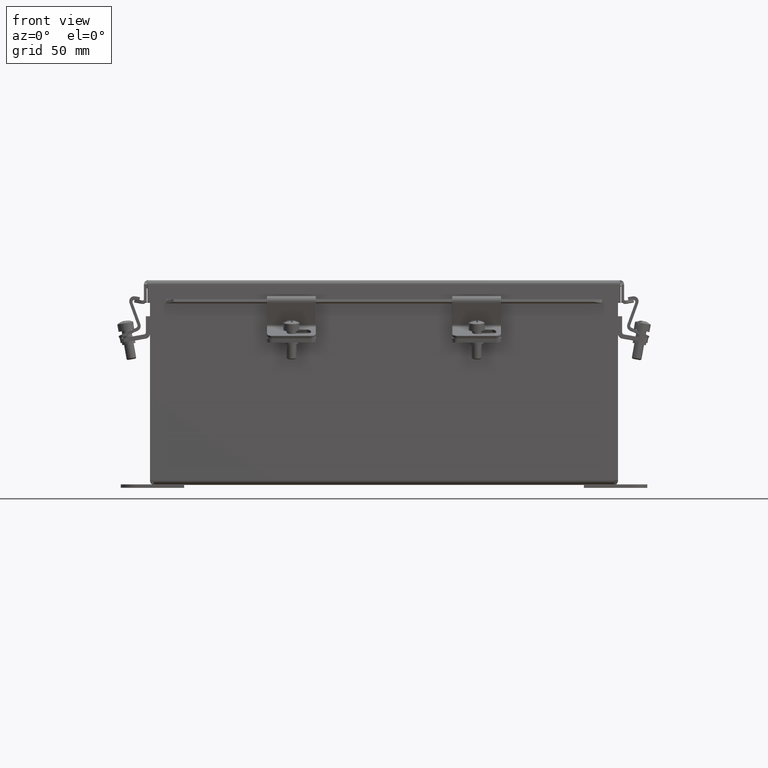
[diagram: clean part render]
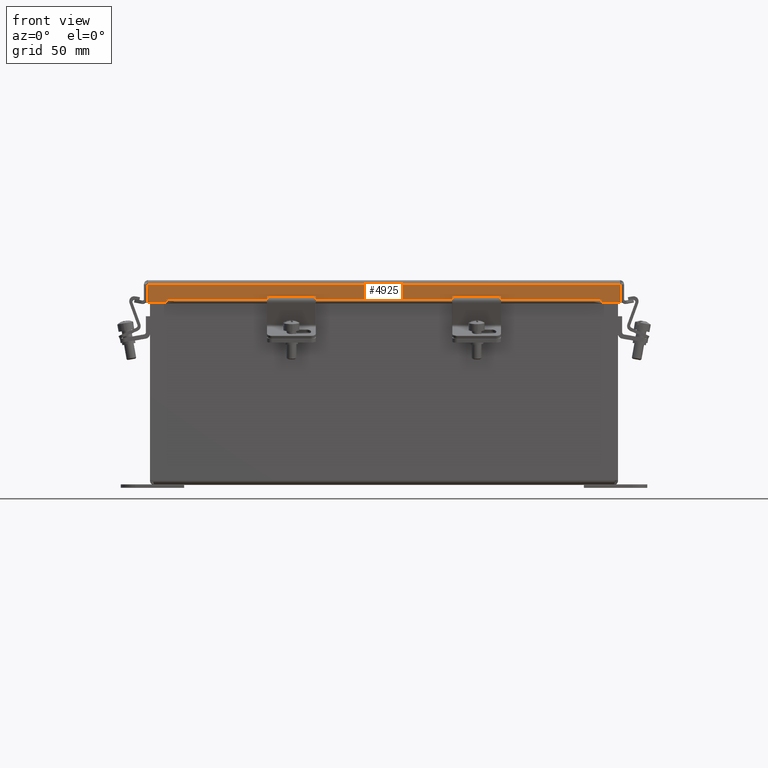
[diagram: same view with one face highlighted and labeled with its STEP entity id]
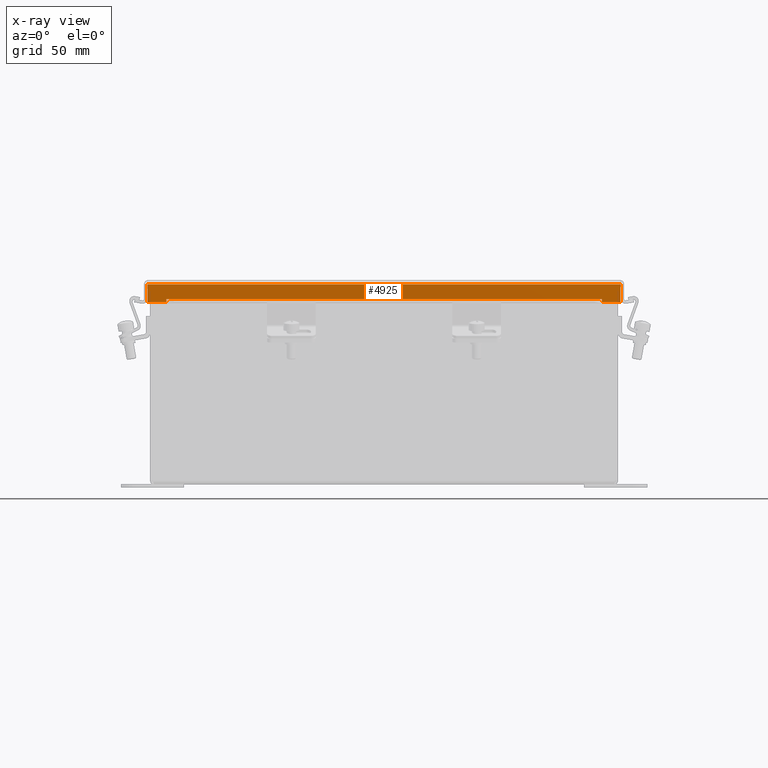
[diagram: x-ray of the same camera — body ghosted, the highlighted face saturated]
A machine part, front view. The second image highlights one B-rep face of the part: STEP entity #4925.
The next image is the same camera in x-ray: the body ghosted, the highlighted face saturated — about 0% of this face is hidden behind the body in this view.
In plain terms, the highlighted planar face has unit normal (-0, 1, -0.0014).
Its self-contained STEP definition (entity closure, byte-faithful):
#573=PLANE('',#5518);
#849=FACE_OUTER_BOUND('',#1149,.T.);
#1149=EDGE_LOOP('',(#3926,#3927,#3928,#3929,#3930,#3931,#3932,#3933,#3934,
#3935,#3936,#3937));
#1535=LINE('',#7843,#2002);
#1538=LINE('',#7849,#2005);
#1541=LINE('',#7855,#2008);
#1542=LINE('',#7857,#2009);
#1543=LINE('',#7859,#2010);
#1544=LINE('',#7861,#2011);
#1545=LINE('',#7863,#2012);
#1546=LINE('',#7865,#2013);
#1547=LINE('',#7867,#2014);
#1548=LINE('',#7869,#2015);
#1549=LINE('',#7871,#2016);
#1550=LINE('',#7872,#2017);
#2002=VECTOR('',#6269,0.393700787401575);
#2005=VECTOR('',#6274,0.393700787401575);
#2008=VECTOR('',#6279,0.393700787401575);
#2009=VECTOR('',#6280,0.393700787401575);
#2010=VECTOR('',#6281,0.393700787401575);
#2011=VECTOR('',#6282,0.393700787401575);
#2012=VECTOR('',#6283,0.393700787401575);
#2013=VECTOR('',#6284,0.393700787401575);
#2014=VECTOR('',#6285,0.393700787401575);
#2015=VECTOR('',#6286,0.393700787401575);
#2016=VECTOR('',#6287,0.393700787401575);
#2017=VECTOR('',#6288,0.393700787401575);
#2619=VERTEX_POINT('',#7840);
#2620=VERTEX_POINT('',#7842);
#2622=VERTEX_POINT('',#7848);
#2624=VERTEX_POINT('',#7854);
#2625=VERTEX_POINT('',#7856);
#2626=VERTEX_POINT('',#7858);
#2627=VERTEX_POINT('',#7860);
#2628=VERTEX_POINT('',#7862);
#2629=VERTEX_POINT('',#7864);
#2630=VERTEX_POINT('',#7866);
#2631=VERTEX_POINT('',#7868);
#2632=VERTEX_POINT('',#7870);
#3080=EDGE_CURVE('',#2619,#2620,#1535,.T.);
#3083=EDGE_CURVE('',#2620,#2622,#1538,.T.);
#3086=EDGE_CURVE('',#2619,#2624,#1541,.T.);
#3087=EDGE_CURVE('',#2625,#2624,#1542,.T.);
#3088=EDGE_CURVE('',#2626,#2625,#1543,.T.);
#3089=EDGE_CURVE('',#2626,#2627,#1544,.T.);
#3090=EDGE_CURVE('',#2627,#2628,#1545,.T.);
#3091=EDGE_CURVE('',#2628,#2629,#1546,.T.);
#3092=EDGE_CURVE('',#2629,#2630,#1547,.T.);
#3093=EDGE_CURVE('',#2630,#2631,#1548,.T.);
#3094=EDGE_CURVE('',#2631,#2632,#1549,.T.);
#3095=EDGE_CURVE('',#2632,#2622,#1550,.T.);
#3926=ORIENTED_EDGE('',*,*,#3080,.F.);
#3927=ORIENTED_EDGE('',*,*,#3086,.T.);
#3928=ORIENTED_EDGE('',*,*,#3087,.F.);
#3929=ORIENTED_EDGE('',*,*,#3088,.F.);
#3930=ORIENTED_EDGE('',*,*,#3089,.T.);
#3931=ORIENTED_EDGE('',*,*,#3090,.T.);
#3932=ORIENTED_EDGE('',*,*,#3091,.T.);
#3933=ORIENTED_EDGE('',*,*,#3092,.T.);
#3934=ORIENTED_EDGE('',*,*,#3093,.T.);
#3935=ORIENTED_EDGE('',*,*,#3094,.T.);
#3936=ORIENTED_EDGE('',*,*,#3095,.T.);
#3937=ORIENTED_EDGE('',*,*,#3083,.F.);
#4925=ADVANCED_FACE('',(#849),#573,.F.);
#5518=AXIS2_PLACEMENT_3D('',#7853,#6277,#6278);
#6269=DIRECTION('',(1.01880777666431E-14,3.96707942655675E-15,1.));
#6274=DIRECTION('',(-2.30105286681936E-16,1.,-1.17786987368762E-16));
#6277=DIRECTION('center_axis',(-1.,-2.30105286681937E-16,1.01880777666431E-14));
#6278=DIRECTION('ref_axis',(1.01880777666431E-14,-2.29118187146058E-16,
1.));
#6279=DIRECTION('',(-2.3041461394075E-16,1.,-4.61523564081814E-32));
#6280=DIRECTION('',(-1.01880777666431E-14,-1.22358112433557E-14,-1.));
#6281=DIRECTION('',(-2.30105286681936E-16,1.,-1.17786987368762E-16));
#6282=DIRECTION('',(4.79345829698487E-15,2.41195071275431E-30,-1.));
#6283=DIRECTION('',(2.3041461394075E-16,-1.,-1.28505042115228E-30));
#6284=DIRECTION('',(-4.79345829698487E-15,-2.41195071275431E-30,1.));
#6285=DIRECTION('',(2.3041461394075E-16,-1.,1.722901660348E-16));
#6286=DIRECTION('',(4.79345829698487E-15,2.41195071275431E-30,-1.));
#6287=DIRECTION('',(2.3041461394075E-16,-1.,-1.28505042115228E-30));
#6288=DIRECTION('',(-4.79345829698487E-15,-2.41195071275431E-30,1.));
#7840=CARTESIAN_POINT('',(10.3124999999998,0.0900000000000001,0.105250000000009));
#7842=CARTESIAN_POINT('',(10.3125,0.0900000000000005,0.562499999999987));
#7843=CARTESIAN_POINT('',(10.3125,0.0899999999999889,-2.3484982264745));
#7848=CARTESIAN_POINT('',(10.3125,0.574707106781188,0.562500000000003));
#7849=CARTESIAN_POINT('',(10.3125,0.0747071067811867,0.562500000000003));
#7853=CARTESIAN_POINT('Origin',(10.3124999999999,6.15625,-5.03087145294901));
#7854=CARTESIAN_POINT('',(10.3124999999998,12.2225,0.105250000000004));
#7855=CARTESIAN_POINT('',(10.3125,6.15625,0.105250000000002));
#7856=CARTESIAN_POINT('',(10.3125,12.2225,0.562500000000002));
#7857=CARTESIAN_POINT('',(10.3125,12.2225,-2.34849822647454));
#7858=CARTESIAN_POINT('',(10.3125,11.7377928932188,0.562500000000003));
#7859=CARTESIAN_POINT('',(10.3125,0.0747071067811867,0.562500000000003));
#7860=CARTESIAN_POINT('',(10.3125,11.7377928932188,0.488057700231434));
#7861=CARTESIAN_POINT('',(10.3125,11.7377928932188,0.38996468593993));
#7862=CARTESIAN_POINT('',(10.3125,11.7375928932188,0.488057700231434));
#7863=CARTESIAN_POINT('',(10.3125,8.94692144660941,0.488057700231434));
#7864=CARTESIAN_POINT('',(10.3125,11.7375928932188,0.488257700231434));
#7865=CARTESIAN_POINT('',(10.3125,11.7375928932188,0.408685835824214));
#7866=CARTESIAN_POINT('',(10.3125,0.574907106781188,0.488257700231435));
#7867=CARTESIAN_POINT('',(10.3125,3.3655785533906,0.488257700231437));
#7868=CARTESIAN_POINT('',(10.3125,0.574907106781188,0.488057700231435));
#7869=CARTESIAN_POINT('',(10.3125,0.574907106781188,0.38996468593993));
#7870=CARTESIAN_POINT('',(10.3125,0.574707106781188,0.488057700231435));
#7871=CARTESIAN_POINT('',(10.3125,3.3654785533906,0.488057700231437));
#7872=CARTESIAN_POINT('',(10.3125,0.574707106781188,0.408685835824216));